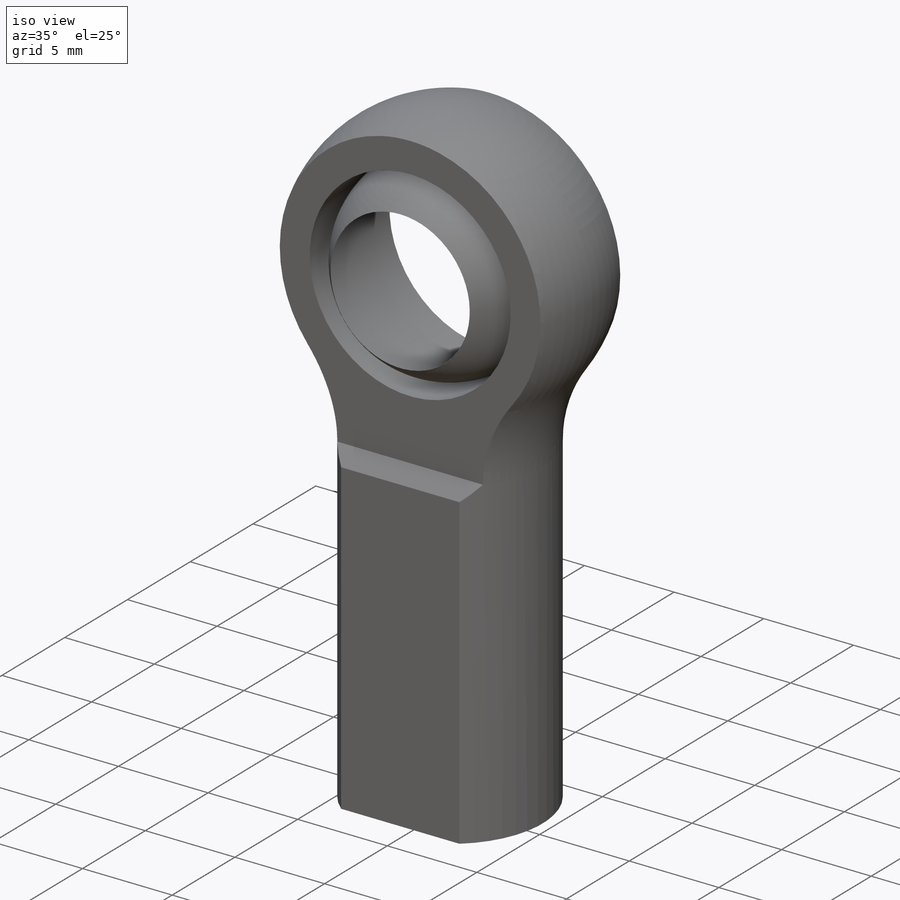
[diagram: iso view]
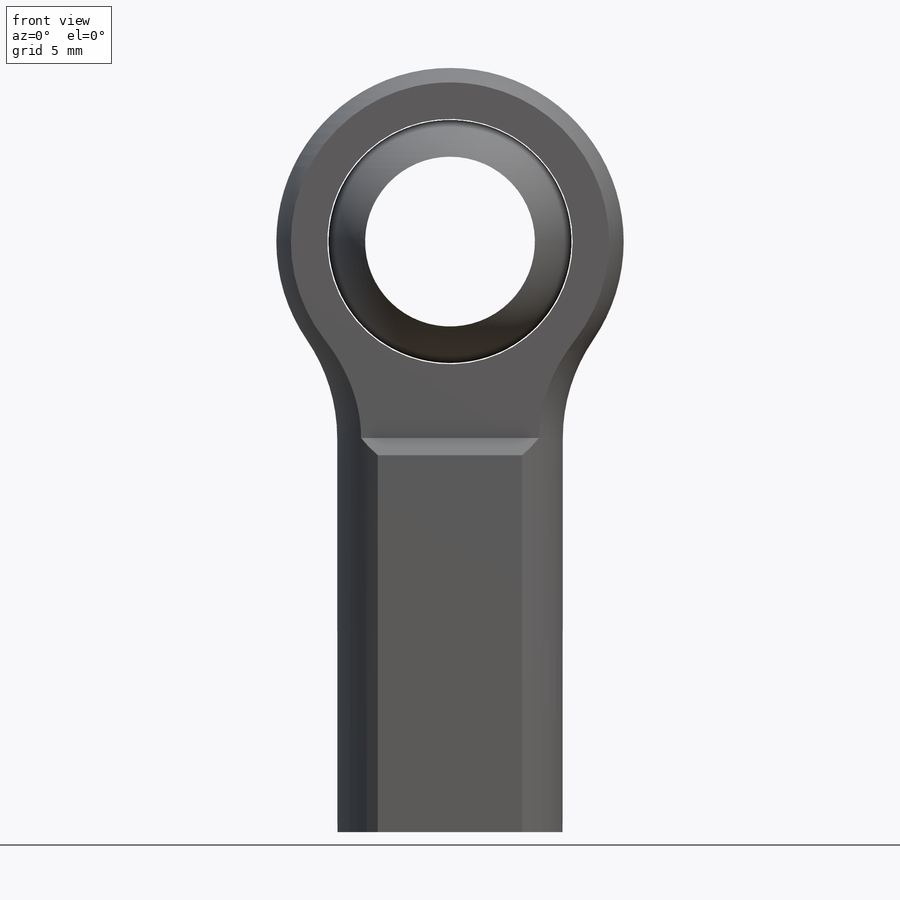
[diagram: front view]
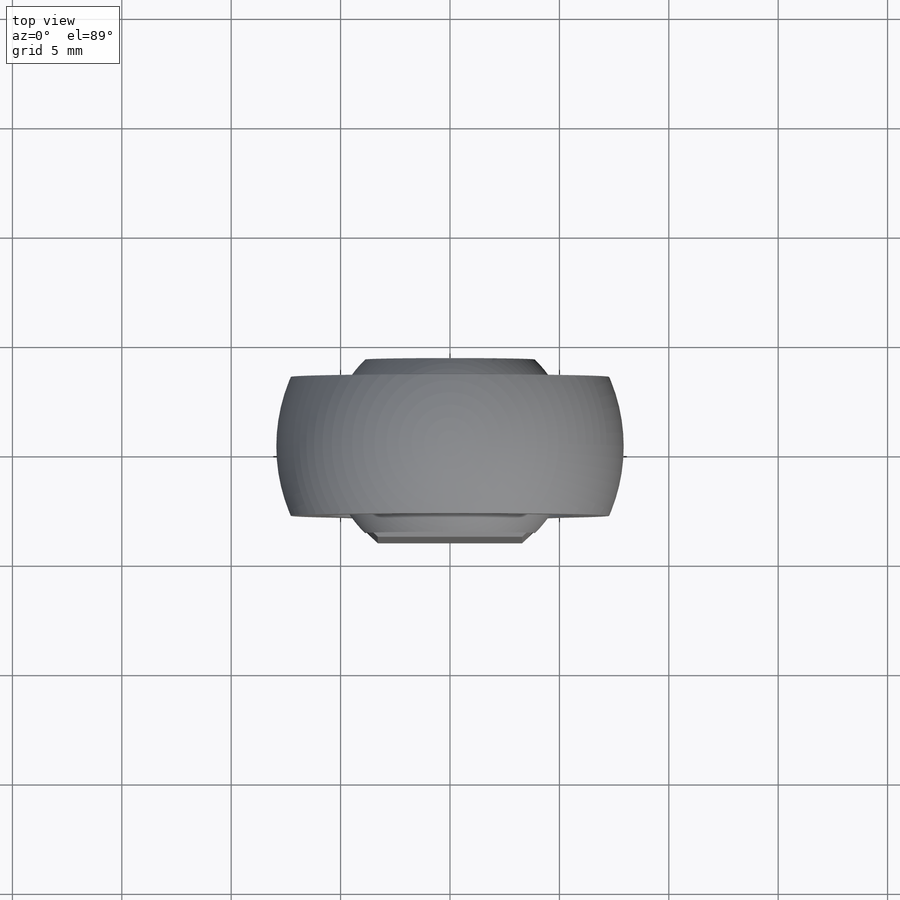
[diagram: top view]
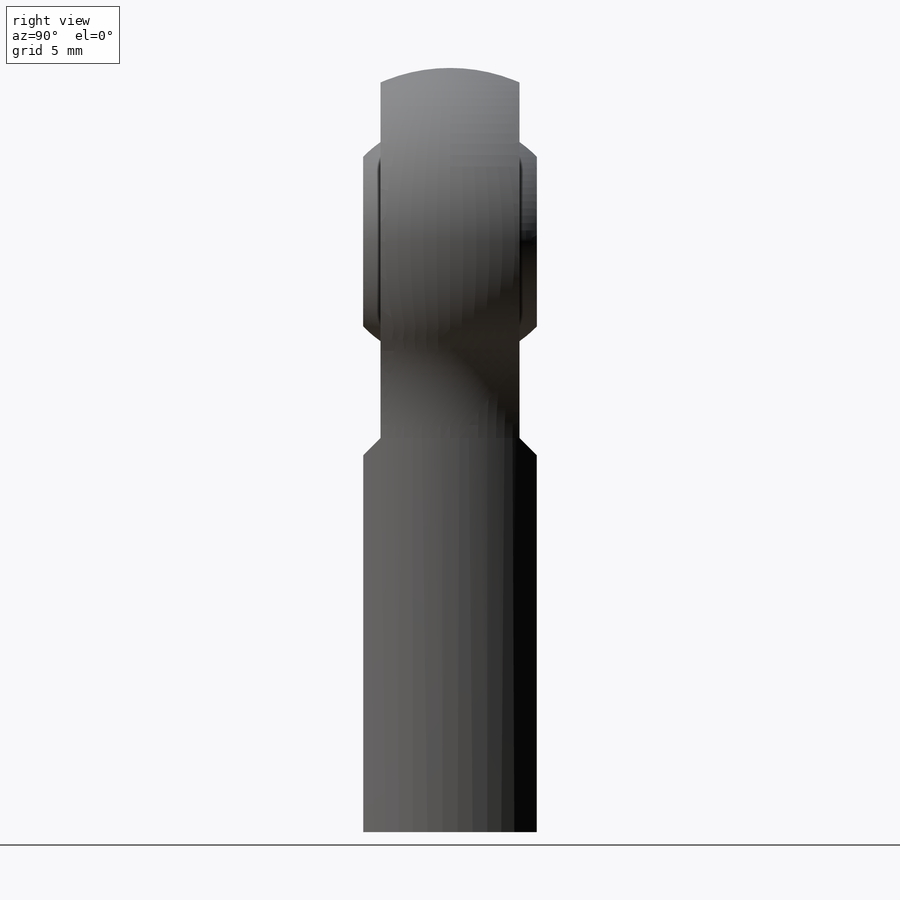
[diagram: right view]
SOLIDWORKS PART (.sldprt)
format: sldprt  version: not decoded by parser v0  size: 922,624 bytes
history: native  units: mm
features: sketch x15, cut_extrude x6, revolve x4, material x1, helix x1, sweep x1, boolean_combine x1, chamfer x1 (+13 scaffold rows collapsed)
feature tree (43):
  scaffold x13  (default folders/planes/origin — collapsed)
  material  "Material <not specified>"
  sketch  "Sketch1"  dims[c1.A=4.7625mm c1.Ball Dia=11.0998mm c1.B=15.875mm c1.D=26.9875mm c1.E=12.7mm c1.Thread Dia=2.0828mm c1.Wrench Flats=6.35mm c1.Base Dia=7.9248mm c1.Base Height=4.7498mm c2.Thread Dia=4.826mm c2.Body Dia=10.3124mm c2.Wrench Flats=7.9248mm]
  revolve  "Revolve1"  Angle=360deg
  sketch  "Sketch12"
  revolve  "Revolve4"  Angle=360deg
  sketch  "Sketch15"
  helix  "Helix/Spiral1"  Pitch=13.49375mm pitch=0.79375mm
  sketch  "Sketch16"  dims[c1.D1=~1.949023mm c2.D1=60.0deg c2.D2=~0.099219mm c2.D3=~0.396875mm]
  sweep  "Cut-Sweep1"
  sketch  "Sketch14"
  cut_extrude  "Cut-Extrude5"  [1 undecoded]
  boolean_combine  "Combine1"
  sketch  "Sketch17"  dims[D1=0.0508mm]
  cut_extrude  "Extrude1"  [1 undecoded]
  sketch  "Sketch4"  dims[D1=2.54mm]
  revolve  "Revolve2"  Angle=360deg
  sketch  "Sketch5"  dims[c1.F=6.35mm c1.D1=15.875mm c1.D2=~1.978025mm c2.D2=45.0deg]
  cut_extrude  "Cut-Extrude1"  [1 undecoded]
  sketch  "Sketch6"
  cut_extrude  "Cut-Extrude2"  [1 undecoded]
  sketch  "Sketch7"
  revolve  "Revolve3"  Angle=360deg
  sketch  "Sketch8"  dims[C=7.9375mm]
  cut_extrude  "Cut-Extrude3"  [1 undecoded]
  sketch  "Sketch10"
  cut_extrude  "Cut-Extrude4"  [1 undecoded]
  chamfer  "Chamfer1"  Distance=0.238125mm Angle=45deg
  sketch  "Sketch11"  dims[D1=2.54mm D2=~3.69202mm Swivel=13.0deg]
  sketch  "Sketch18"
  sketch  "Sketch19"
decode coverage: 13 of 29 modeling features carry decoded parameters
note: ~ marks probable driven/reference dimensions
note: 6 parameter values undecoded
summary: no parameter record found for 6 features
note: suppression state not decoded; provenance and decode notes live in map.json
